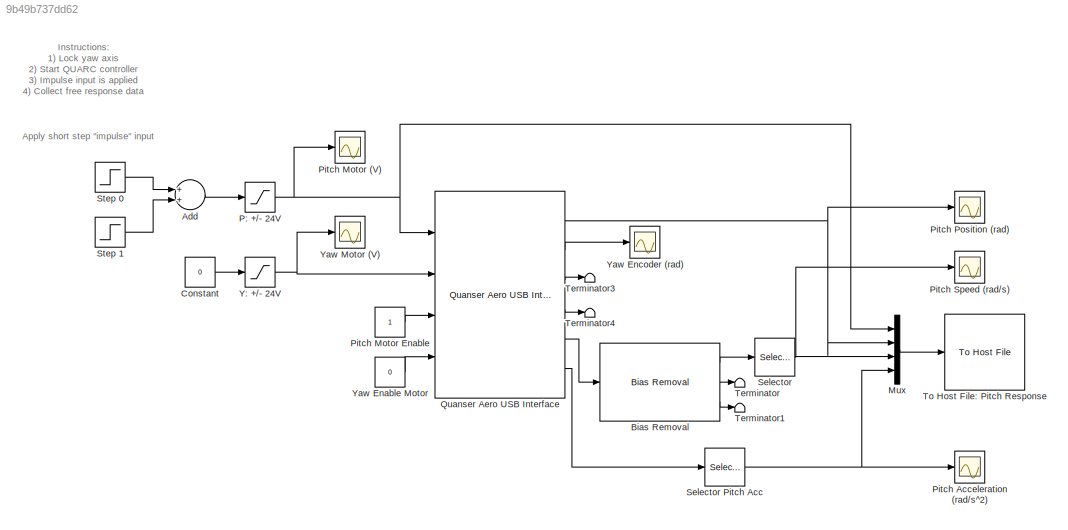
MODEL slx_9b49b737dd62
KIND model
BLOCK [Sum] Add
  InputSameDT = off
  OutDataTypeStr = Inherit: Inherit via internal rule
  Ports = [2, 1]
  SaturateOnIntegerOverflow = off
BLOCK [Reference] Bias Removal  REF=quarc_library/Discrete/Bias Removal
  Ports = [1, 3]
  SourceBlock = quarc_library/Discrete/Bias Removal
  SourceType = Bias Removal
  end_time = 1
  sample_time = qc_get_step_size
  start_time = 0
  switch_id = 0
BLOCK [Constant] Constant
  Value = 0
BLOCK [Mux] Mux
  DisplayOption = bar
  Ports = [4, 1]
BLOCK [Saturate] P: +//- 24V
  InputPortMap = u0
  LowerLimit = -24
  Ports = [1, 1]
  UpperLimit = 24
BLOCK [Scope] Pitch Acceleration (rad//s^2)
  Floating = off
  MaxDataPoints = 15000
  NumInputPorts = 1
  Ports = [1]
  SaveName = pitch_spd1
  ShowLegends = off
  TimeRange = 30
  YMax = 10
  YMin = -10
  ZoomMode = yonly
BLOCK [Scope] Pitch Motor (V)
  Floating = off
  MaxDataPoints = 15000
  NumInputPorts = 1
  Ports = [1]
  SaveName = ScopeData2
  ShowLegends = off
  TimeRange = 30
  YMax = 25
  YMin = -25
BLOCK [Constant] Pitch Motor Enable
BLOCK [Scope] Pitch Position (rad)
  Floating = off
  MaxDataPoints = 15000
  NumInputPorts = 1
  Ports = [1]
  SaveName = ScopeData3
  ShowLegends = off
  TimeRange = 30
  YMax = 1.5
  YMin = -1.5
BLOCK [Scope] Pitch Speed (rad//s)
  Floating = off
  MaxDataPoints = 15000
  NumInputPorts = 1
  Ports = [1]
  SaveName = pitch_spd
  ShowLegends = off
  TimeRange = 30
  YMax = 1.5
  YMin = -1.5
  ZoomMode = yonly
BLOCK [Reference] Quanser Aero USB Interface  REF=quanser_aero/Quanser Aero USB Interface  (lib defined in slx_27f8158dc1f1, slx_88e45530731e)
  Ports = [4, 6]
  SourceBlock = quanser_aero/Quanser Aero USB Interface
  SourceType = SubSystem
BLOCK [Selector] Selector
  Indices = [2]
  InputPortWidth = 3
  Ports = [1, 1]
BLOCK [Selector] Selector Pitch Acc
  Indices = [1]
  InputPortWidth = 3
  Ports = [1, 1]
BLOCK [Step] Step 0
  After = -20
  SampleTime = 0
BLOCK [Step] Step 1
  After = 20
  SampleTime = 0
  Time = 1.75
BLOCK [Terminator] Terminator
BLOCK [Terminator] Terminator1
BLOCK [Terminator] Terminator3
BLOCK [Terminator] Terminator4
BLOCK [Reference] To Host File: Pitch Response  REF=quarc_library/Sinks/To Host/To Host File
  AttributesFormatString = %<final_file_name>
  Ports = [1]
  SourceBlock = quarc_library/Sinks/To Host/To Host File
  SourceType = To Host File
  append = off
  decimation = 1
  file_format = MAT-file v.4
  file_name = aero_pitch_free_osc_rsp.mat
  final_file_name = aero_pitch_free_osc_rsp.mat
  options = No header or footer
  sample_time = -1
  variable_name = free_osc_rsp_pitch
BLOCK [Saturate] Y: +//- 24V
  InputPortMap = u0
  LowerLimit = -24
  Ports = [1, 1]
  UpperLimit = 24
BLOCK [Constant] Yaw Enable Motor
  Value = 0
BLOCK [Scope] Yaw Encoder (rad)
  Floating = off
  NumInputPorts = 1
  Ports = [1]
  SaveName = ScopeData4
  ShowLegends = off
  TimeRange = 5
  YMax = 1.5
  YMin = -0.5
BLOCK [Scope] Yaw Motor (V)
  Floating = off
  NumInputPorts = 1
  Ports = [1]
  SaveName = ScopeData5
  ShowLegends = off
  TimeRange = 5
  YMax = 25
  YMin = -25
ANNOTATION (root): Instructions: 1) Lock yaw axis 2) Start QUARC controller 3) Impulse input is applied 4) Collect free response data
ANNOTATION (root): Apply short step "impulse" input
LINE Add:1 -> P: +//- 24V:1
LINE Bias Removal:1 -> Selector:1
LINE Bias Removal:2 -> Terminator:1
LINE Bias Removal:3 -> Terminator1:1
LINE Constant:1 -> Y: +//- 24V:1
LINE Mux:1 -> To Host File: Pitch Response:1
NET P: +//- 24V:1 -> Mux:1, Pitch Motor (V):1, Quanser Aero USB Interface:1
LINE Pitch Motor Enable:1 -> Quanser Aero USB Interface:3
NET Quanser Aero USB Interface:1 -> Mux:2, Pitch Position (rad):1
LINE Quanser Aero USB Interface:2 -> Yaw Encoder (rad):1
LINE Quanser Aero USB Interface:3 -> Terminator3:1
LINE Quanser Aero USB Interface:4 -> Terminator4:1
LINE Quanser Aero USB Interface:5 -> Bias Removal:1
LINE Quanser Aero USB Interface:6 -> Selector Pitch Acc:1
NET Selector Pitch Acc:1 -> Mux:4, Pitch Acceleration (rad//s^2):1
NET Selector:1 -> Mux:3, Pitch Speed (rad//s):1
LINE Step 0:1 -> Add:1
LINE Step 1:1 -> Add:2
NET Y: +//- 24V:1 -> Quanser Aero USB Interface:2, Yaw Motor (V):1
LINE Yaw Enable Motor:1 -> Quanser Aero USB Interface:4
note: NET lines group one-source signal fan-out (src -> all destinations, sorted); 1:1 wires keep LINE
